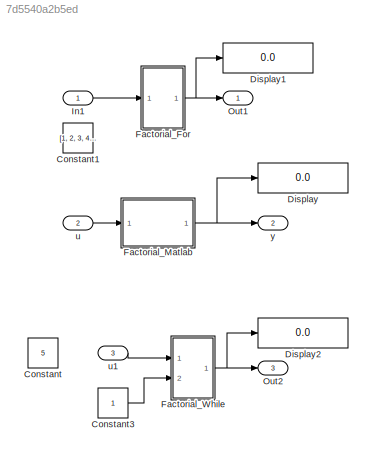
MODEL slx_7d5540a2b5ed
KIND model
CONFIG AbsTol = auto
CONFIG EnableMultiTasking = off
CONFIG FixedStep = auto
CONFIG MaxStep = auto
CONFIG MinStep = auto
CONFIG RelTol = 1e-3
CONFIG SampleTimeConstraint = Unconstrained
CONFIG SolverName = VariableStepAuto
CONFIG StartTime = 0.0
CONFIG StopTime = 10.0
BLOCK [Constant] Constant
  OutDataTypeStr = uint32
  Value = 5
BLOCK [Constant] Constant1
  OutDataTypeStr = uint32
  Value = [1, 2, 3, 4, 5]
BLOCK [Constant] Constant3
  OutDataTypeStr = uint32
BLOCK [Display] Display
  Decimation = 1
  Ports = [1]
BLOCK [Display] Display1
  Decimation = 1
  Ports = [1]
BLOCK [Display] Display2
  Decimation = 1
  Ports = [1]
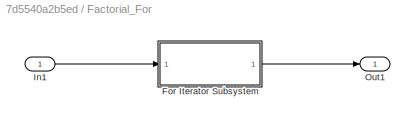
BLOCK [SubSystem] Factorial_For
  Ports = [1, 1]
  RTWFcnName = Fac_For
  RTWFcnNameOpts = User specified
  RTWSystemCode = Reusable function
  RequestExecContextInheritance = off
  TreatAsAtomicUnit = on
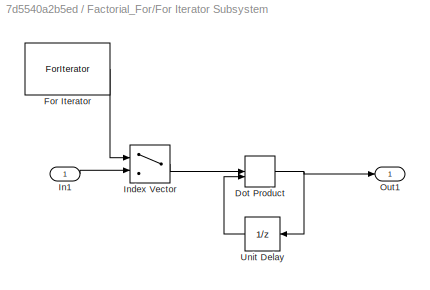
BLOCK [SubSystem] Factorial_For/For Iterator Subsystem
  Ports = [1, 1]
  RequestExecContextInheritance = off
  TreatAsAtomicUnit = on
BLOCK [DotProduct] Factorial_For/For Iterator Subsystem/Dot Product
  OutDataTypeStr = uint32
BLOCK [ForIterator] Factorial_For/For Iterator Subsystem/For Iterator
  IndexMode = Zero-based
  Ports = [0, 1]
BLOCK [Inport] Factorial_For/For Iterator Subsystem/In1
BLOCK [MultiPortSwitch] Factorial_For/For Iterator Subsystem/Index Vector
  DataPortOrder = Zero-based contiguous
  InputSameDT = off
  Inputs = 1
  OutDataTypeStr = uint32
  Ports = [2, 1]
  SaturateOnIntegerOverflow = off
  zeroidx = on
BLOCK [Outport] Factorial_For/For Iterator Subsystem/Out1
BLOCK [UnitDelay] Factorial_For/For Iterator Subsystem/Unit Delay
  HasFrameUpgradeWarning = on
  InitialCondition = 1
  SampleTime = -1
BLOCK [Inport] Factorial_For/In1
  PortDimensions = 5
BLOCK [Outport] Factorial_For/Out1
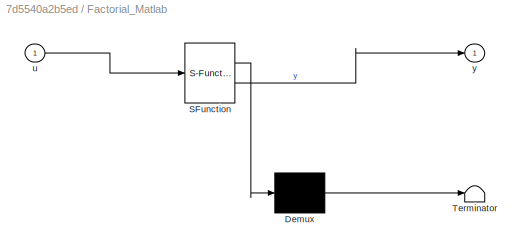
BLOCK [SubSystem] Factorial_Matlab
  ErrorFcn = Stateflow.Translate.translate
  PermitHierarchicalResolution = ExplicitOnly
  Ports = [1, 1]
  RTWFcnName = Fac_Matlab
  RTWFcnNameOpts = User specified
  RTWSystemCode = Reusable function
  RequestExecContextInheritance = off
  SFBlockType = MATLAB Function
  TreatAsAtomicUnit = on
BLOCK [Demux] Factorial_Matlab/ Demux 
  Outputs = 1
  Ports = [1, 1]
BLOCK [S-Function] Factorial_Matlab/ SFunction 
  EnableBusSupport = on
  FunctionName = sf_sfun
  PortCounts = [1 2]
  Ports = [1, 2]
  SFcnIsStateOwnerBlock = off
  SFunctionDeploymentMode = off
  Tag = Stateflow S-Function 2
BLOCK [Terminator] Factorial_Matlab/ Terminator 
BLOCK [Inport] Factorial_Matlab/u
BLOCK [Outport] Factorial_Matlab/y
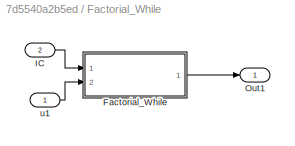
BLOCK [SubSystem] Factorial_While
  Ports = [2, 1]
  RTWFcnName = Fac_While
  RTWFcnNameOpts = User specified
  RTWSystemCode = Reusable function
  RequestExecContextInheritance = off
  TreatAsAtomicUnit = on
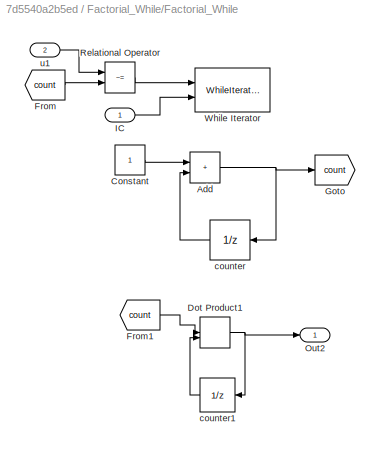
BLOCK [SubSystem] Factorial_While/Factorial_While
  Ports = [2, 1]
  RequestExecContextInheritance = off
  TreatAsAtomicUnit = on
BLOCK [Sum] Factorial_While/Factorial_While/Add
  IconShape = rectangular
  Ports = [2, 1]
BLOCK [Constant] Factorial_While/Factorial_While/Constant
BLOCK [DotProduct] Factorial_While/Factorial_While/Dot Product1
  OutDataTypeStr = Inherit: Inherit via internal rule
BLOCK [From] Factorial_While/Factorial_While/From
  GotoTag = count
BLOCK [From] Factorial_While/Factorial_While/From1
  GotoTag = count
BLOCK [Goto] Factorial_While/Factorial_While/Goto
  GotoTag = count
BLOCK [Inport] Factorial_While/Factorial_While/IC
BLOCK [Outport] Factorial_While/Factorial_While/Out2
BLOCK [RelationalOperator] Factorial_While/Factorial_While/Relational Operator
  InputSameDT = off
  Operator = ~=
  OutDataTypeStr = boolean
  Ports = [2, 1]
  RndMeth = Simplest
BLOCK [WhileIterator] Factorial_While/Factorial_While/While Iterator
  MaxIters = 50
  Ports = [2]
BLOCK [UnitDelay] Factorial_While/Factorial_While/counter
  HasFrameUpgradeWarning = on
  SampleTime = -1
BLOCK [UnitDelay] Factorial_While/Factorial_While/counter1
  HasFrameUpgradeWarning = on
  InitialCondition = 1
  SampleTime = -1
BLOCK [Inport] Factorial_While/Factorial_While/u1
  Port = 2
BLOCK [Inport] Factorial_While/IC
  Port = 2
BLOCK [Outport] Factorial_While/Out1
BLOCK [Inport] Factorial_While/u1
  OutDataTypeStr = uint32
BLOCK [Inport] In1
  PortDimensions = 5
BLOCK [Outport] Out1
BLOCK [Outport] Out2
  Port = 3
BLOCK [Inport] u
  OutDataTypeStr = uint32
  Port = 2
BLOCK [Inport] u1
  OutDataTypeStr = uint32
  Port = 3
BLOCK [Outport] y
  Port = 2
LINE Constant3:1 -> Factorial_While:2
NET Factorial_For/For Iterator Subsystem/Dot Product:1 -> Factorial_For/For Iterator Subsystem/Out1:1, Factorial_For/For Iterator Subsystem/Unit Delay:1
LINE Factorial_For/For Iterator Subsystem/For Iterator:1 -> Factorial_For/For Iterator Subsystem/Index Vector:1
LINE Factorial_For/For Iterator Subsystem/In1:1 -> Factorial_For/For Iterator Subsystem/Index Vector:2
LINE Factorial_For/For Iterator Subsystem/Index Vector:1 -> Factorial_For/For Iterator Subsystem/Dot Product:1
LINE Factorial_For/For Iterator Subsystem/Unit Delay:1 -> Factorial_For/For Iterator Subsystem/Dot Product:2
LINE Factorial_For/For Iterator Subsystem:1 -> Factorial_For/Out1:1
LINE Factorial_For/In1:1 -> Factorial_For/For Iterator Subsystem:1
NET Factorial_For:1 -> Display1:1, Out1:1
NET Factorial_Matlab:1 -> Display:1, y:1
NET Factorial_While/Factorial_While/Add:1 -> Factorial_While/Factorial_While/Goto:1, Factorial_While/Factorial_While/counter:1
LINE Factorial_While/Factorial_While/Constant:1 -> Factorial_While/Factorial_While/Add:1
NET Factorial_While/Factorial_While/Dot Product1:1 -> Factorial_While/Factorial_While/Out2:1, Factorial_While/Factorial_While/counter1:1
LINE Factorial_While/Factorial_While/From1:1 -> Factorial_While/Factorial_While/Dot Product1:1
LINE Factorial_While/Factorial_While/From:1 -> Factorial_While/Factorial_While/Relational Operator:2
LINE Factorial_While/Factorial_While/IC:1 -> Factorial_While/Factorial_While/While Iterator:2
LINE Factorial_While/Factorial_While/Relational Operator:1 -> Factorial_While/Factorial_While/While Iterator:1
LINE Factorial_While/Factorial_While/counter1:1 -> Factorial_While/Factorial_While/Dot Product1:2
LINE Factorial_While/Factorial_While/counter:1 -> Factorial_While/Factorial_While/Add:2
LINE Factorial_While/Factorial_While/u1:1 -> Factorial_While/Factorial_While/Relational Operator:1
LINE Factorial_While/Factorial_While:1 -> Factorial_While/Out1:1
LINE Factorial_While/IC:1 -> Factorial_While/Factorial_While:1
LINE Factorial_While/u1:1 -> Factorial_While/Factorial_While:2
NET Factorial_While:1 -> Display2:1, Out2:1
LINE In1:1 -> Factorial_For:1
LINE u1:1 -> Factorial_While:1
LINE u:1 -> Factorial_Matlab:1
note: NET lines group one-source signal fan-out (src -> all destinations, sorted); 1:1 wires keep LINE
CHART Factorial_Matlab states=1 transitions=1
  STATE_LABEL 'eML_blk_kernel()'
  STATE_LABEL 'SCRIPT:\nfunction y = fcn(u)\ny = uint32(1);\nwhile u > 0\n    y = y .* u;\n    u = u - 1;\nend\n\n'
CHART  states=0 transitions=0
